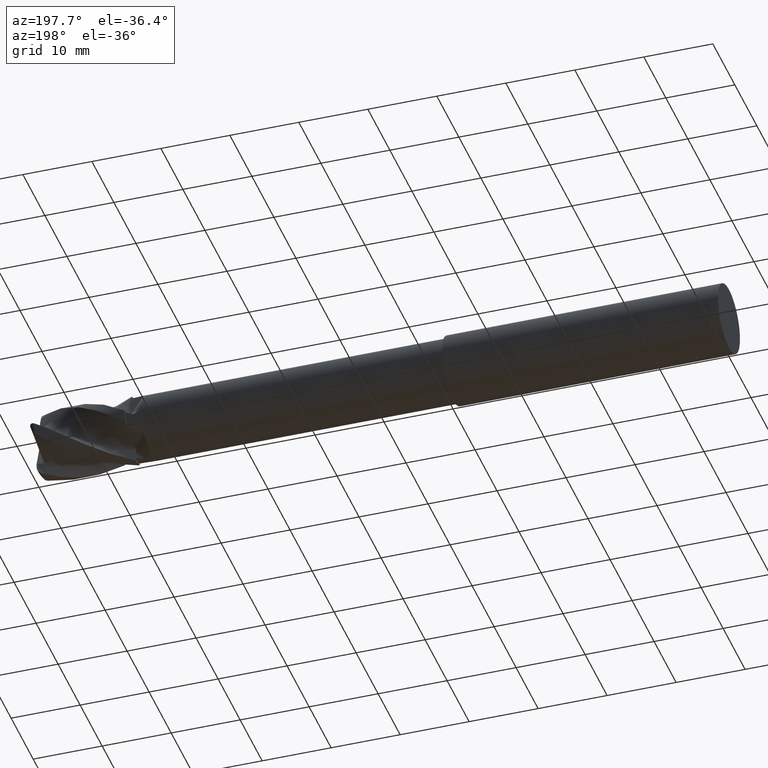
[diagram: clean part render]
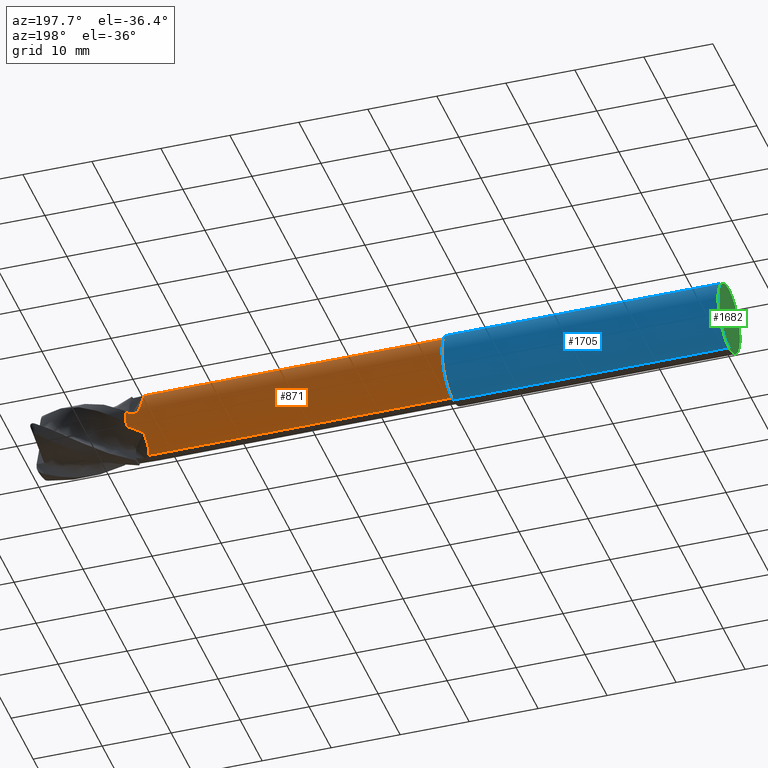
[diagram: same view with three faces highlighted in distinct colors, each labeled with its STEP entity id]
A machine part, auxiliary view with three faces highlighted in distinct colors.
Their STEP definitions:

[orange] entity #871 — the highlighted cylindrical surface (edge-blend (fillet) strip) has radius 4.6 mm, axis along (-1, -0, -0).
#6 = EDGE_CURVE ( 'NONE', #1723, #1753, #130, .T. ) ;
#11 = EDGE_CURVE ( 'NONE', #1735, #1746, #122, .T. ) ;
#16 = AXIS2_PLACEMENT_3D ( 'NONE', #1970, #1971, #1972 ) ;
#23 = AXIS2_PLACEMENT_3D ( 'NONE', #374, #1806, #1808 ) ;
#49 = AXIS2_PLACEMENT_3D ( 'NONE', #1817, #1849, #1851 ) ;
#67 = EDGE_CURVE ( 'NONE', #1744, #1745, #425, .T. ) ;
#68 = AXIS2_PLACEMENT_3D ( 'NONE', #2635, #2633, #2631 ) ;
#71 = EDGE_CURVE ( 'NONE', #1724, #1723, #739, .T. ) ;
#119 = EDGE_CURVE ( 'NONE', #1744, #1746, #729, .T. ) ;
#122 = B_SPLINE_CURVE_WITH_KNOTS ( 'NONE', 3,
 ( #2689, #2680, #2694, #1814 ),
 .UNSPECIFIED., .F., .F.,
 ( 4, 4 ),
 ( 0.0000000000000000000, 0.002579758341866395600 ),
 .UNSPECIFIED. ) ;
#130 = B_SPLINE_CURVE_WITH_KNOTS ( 'NONE', 3,
 ( #2632, #2688, #2691, #2690 ),
 .UNSPECIFIED., .F., .F.,
 ( 4, 4 ),
 ( 0.0000000000000000000, 6.838080185869568700E-005 ),
 .UNSPECIFIED. ) ;
#141 = EDGE_CURVE ( 'NONE', #1756, #1755, #722, .T. ) ;
#181 = EDGE_CURVE ( 'NONE', #1757, #1755, #715, .T. ) ;
#188 = EDGE_CURVE ( 'NONE', #1764, #2592, #2710, .T. ) ;
#215 = EDGE_CURVE ( 'NONE', #1752, #1724, #2728, .T. ) ;
#218 = EDGE_CURVE ( 'NONE', #1752, #1756, #4793, .T. ) ;
#227 = EDGE_CURVE ( 'NONE', #1764, #1735, #5555, .T. ) ;
#231 = EDGE_CURVE ( 'NONE', #2592, #1757, #2733, .T. ) ;
#244 = EDGE_CURVE ( 'NONE', #1722, #1745, #846, .T. ) ;
#274 = CARTESIAN_POINT ( 'NONE',  ( 43.68486841192311200, 3.593307055375448500, 2.890005949104696500 ) ) ;
#316 = CARTESIAN_POINT ( 'NONE',  ( 46.00000000000002800, -3.057177230266307700E-014, 4.603806250000012300 ) ) ;
#336 = CARTESIAN_POINT ( 'NONE',  ( 45.47496809532894000, 4.588978823489462400, -0.3182347522905614200 ) ) ;
#342 = CARTESIAN_POINT ( 'NONE',  ( 45.56248452080900100, 4.592651830724725500, -0.2652695990480638500 ) ) ;
#343 = CARTESIAN_POINT ( 'NONE',  ( 45.65000113758220100, 4.595408140834668300, -0.2122332164550556300 ) ) ;
#346 = CARTESIAN_POINT ( 'NONE',  ( 45.91249813699650400, 4.600000000000131100, -0.05305276993566909000 ) ) ;
#347 = CARTESIAN_POINT ( 'NONE',  ( 45.73751687418248200, 4.597245308640931500, -0.1591715181151740800 ) ) ;
#348 = CARTESIAN_POINT ( 'NONE',  ( 45.82500441381378700, 4.599081884524350600, -0.1061269158898889000 ) ) ;
#369 = CARTESIAN_POINT ( 'NONE',  ( 46.00000000000002800, 4.603806250000012300, 7.893058096946935400E-014 ) ) ;
#374 = CARTESIAN_POINT ( 'NONE',  ( 46.00000000000000000, 0.0000000000000000000, 0.0000000000000000000 ) ) ;
#376 = CARTESIAN_POINT ( 'NONE',  ( 45.47496809532895400, 0.3182347522906102700, 4.588978823489458000 ) ) ;
#377 = CARTESIAN_POINT ( 'NONE',  ( 45.56248452080907900, 0.2652695990480717900, 4.592651830724691700 ) ) ;
#379 = CARTESIAN_POINT ( 'NONE',  ( 43.78568294005629000, 3.149999999999916900, 3.359977695790985900 ) ) ;
#385 = CARTESIAN_POINT ( 'NONE',  ( 45.65000113758224400, 0.2122332164550783900, 4.595408140834667400 ) ) ;
#387 = CARTESIAN_POINT ( 'NONE',  ( 45.73751687418249600, 0.1591715181152130500, 4.597245308640930600 ) ) ;
#388 = CARTESIAN_POINT ( 'NONE',  ( 45.82500441381378000, 0.1061269158899422900, 4.599081884524349700 ) ) ;
#390 = CARTESIAN_POINT ( 'NONE',  ( 45.91249813699652500, 0.05305276993584148700, 4.599999999999989900 ) ) ;
#392 = CARTESIAN_POINT ( 'NONE',  ( 43.72895469692024100, 3.384153176010997300, 3.132211171381911600 ) ) ;
#421 = EDGE_LOOP ( 'NONE', ( #553, #518, #495, #517, #618, #652, #649, #666, #627, #558, #527, #570, #562, #551 ) ) ;
#424 = VECTOR ( 'NONE', #4720, 1000.000000000000000 ) ;
#425 = LINE ( 'NONE', #4714, #424 ) ;
#495 = ORIENTED_EDGE ( 'NONE', *, *, #244, .F. ) ;
#517 = ORIENTED_EDGE ( 'NONE', *, *, #5683, .F. ) ;
#518 = ORIENTED_EDGE ( 'NONE', *, *, #67, .T. ) ;
#527 = ORIENTED_EDGE ( 'NONE', *, *, #231, .F. ) ;
#551 = ORIENTED_EDGE ( 'NONE', *, *, #11, .T. ) ;
#553 = ORIENTED_EDGE ( 'NONE', *, *, #119, .F. ) ;
#558 = ORIENTED_EDGE ( 'NONE', *, *, #181, .F. ) ;
#562 = ORIENTED_EDGE ( 'NONE', *, *, #227, .T. ) ;
#570 = ORIENTED_EDGE ( 'NONE', *, *, #188, .F. ) ;
#618 = ORIENTED_EDGE ( 'NONE', *, *, #6, .F. ) ;
#627 = ORIENTED_EDGE ( 'NONE', *, *, #141, .T. ) ;
#649 = ORIENTED_EDGE ( 'NONE', *, *, #215, .F. ) ;
#652 = ORIENTED_EDGE ( 'NONE', *, *, #71, .F. ) ;
#666 = ORIENTED_EDGE ( 'NONE', *, *, #218, .T. ) ;
#715 = B_SPLINE_CURVE_WITH_KNOTS ( 'NONE', 3,
 ( #2850, #2845, #2844, #2843, #2842, #2841, #2874, #2945, #3885, #274, #392, #379 ),
 .UNSPECIFIED., .F., .F.,
 ( 4, 2, 2, 2, 2, 4 ),
 ( 0.0000000000000000000, 0.0009687754797152372100, 0.001453163219572852700, 0.001937550959430468400, 0.002906326439145700600, 0.003875101918860933200 ),
 .UNSPECIFIED. ) ;
#722 = B_SPLINE_CURVE_WITH_KNOTS ( 'NONE', 3,
 ( #2935, #2932, #2931, #2930 ),
 .UNSPECIFIED., .F., .F.,
 ( 4, 4 ),
 ( 0.0000000000000000000, 0.002579758341759249100 ),
 .UNSPECIFIED. ) ;
#729 = B_SPLINE_CURVE_WITH_KNOTS ( 'NONE', 3,
 ( #3022, #2868, #2860, #2857, #2856, #2853, #3069, #3061, #3059, #3058, #3056, #3054 ),
 .UNSPECIFIED., .F., .F.,
 ( 4, 2, 2, 2, 2, 4 ),
 ( 6.838080185869621500E-005, 0.001020061081109255400, 0.001495901220734537400, 0.001971741360359819200, 0.002923421639610383600, 0.003875101918860948400 ),
 .UNSPECIFIED. ) ;
#739 = B_SPLINE_CURVE_WITH_KNOTS ( 'NONE', 3,
 ( #4764, #4756, #4750, #4734, #4770, #4767, #4744, #4743, #4735, #4762 ),
 .UNSPECIFIED., .F., .F.,
 ( 4, 2, 2, 2, 4 ),
 ( 0.0000000000000000000, 0.0003904199212847112600, 0.0007808398425694225100, 0.001171259763854133800, 0.001561679685138845000 ),
 .UNSPECIFIED. ) ;
#846 = CIRCLE ( 'NONE', #16, 4.600000000000013000 ) ;
#871 = ADVANCED_FACE ( 'NONE', ( #2815 ), #2831, .T. ) ;
#1722 = VERTEX_POINT ( 'NONE', #5164 ) ;
#1723 = VERTEX_POINT ( 'NONE', #5234 ) ;
#1724 = VERTEX_POINT ( 'NONE', #5235 ) ;
#1735 = VERTEX_POINT ( 'NONE', #5246 ) ;
#1744 = VERTEX_POINT ( 'NONE', #5253 ) ;
#1745 = VERTEX_POINT ( 'NONE', #4883 ) ;
#1746 = VERTEX_POINT ( 'NONE', #5254 ) ;
#1752 = VERTEX_POINT ( 'NONE', #5260 ) ;
#1753 = VERTEX_POINT ( 'NONE', #5261 ) ;
#1755 = VERTEX_POINT ( 'NONE', #5263 ) ;
#1756 = VERTEX_POINT ( 'NONE', #5264 ) ;
#1757 = VERTEX_POINT ( 'NONE', #5265 ) ;
#1764 = VERTEX_POINT ( 'NONE', #5272 ) ;
#1806 = DIRECTION ( 'NONE',  ( -1.000000000000000000, -0.0000000000000000000, -0.0000000000000000000 ) ) ;
#1808 = DIRECTION ( 'NONE',  ( 0.0000000000000000000, 0.0000000000000000000, 1.000000000000000000 ) ) ;
#1814 = CARTESIAN_POINT ( 'NONE',  ( 43.78568294005627600, 3.359977695790956600, -3.149999999999951500 ) ) ;
#1817 = CARTESIAN_POINT ( 'NONE',  ( 46.00000000000000000, 0.0000000000000000000, 0.0000000000000000000 ) ) ;
#1849 = DIRECTION ( 'NONE',  ( -1.000000000000000000, -0.0000000000000000000, -0.0000000000000000000 ) ) ;
#1851 = DIRECTION ( 'NONE',  ( 0.0000000000000000000, 0.0000000000000000000, 1.000000000000000000 ) ) ;
#1853 = CARTESIAN_POINT ( 'NONE',  ( 45.47496809532894000, 4.588978823489462400, -0.3182347522905614200 ) ) ;
#1867 = CARTESIAN_POINT ( 'NONE',  ( 45.36208974345393600, 4.584241403570441500, -0.3865488491322051600 ) ) ;
#1868 = CARTESIAN_POINT ( 'NONE',  ( 45.24179263251835400, 4.579391793827799300, -0.4360046734373243000 ) ) ;
#1870 = CARTESIAN_POINT ( 'NONE',  ( 44.98602054695380300, 4.573211066602193700, -0.4966586523395944400 ) ) ;
#1872 = CARTESIAN_POINT ( 'NONE',  ( 44.85523423182750900, 4.572048517663422000, -0.5065647287860735000 ) ) ;
#1874 = CARTESIAN_POINT ( 'NONE',  ( 44.59525196074251600, 4.575326415361317300, -0.4760500658705544800 ) ) ;
#1876 = CARTESIAN_POINT ( 'NONE',  ( 44.46577530485286900, 4.580064301766896900, -0.4339461765837098800 ) ) ;
#1877 = CARTESIAN_POINT ( 'NONE',  ( 44.24726286046340100, 4.591501150517747700, -0.2888173770487416100 ) ) ;
#1878 = CARTESIAN_POINT ( 'NONE',  ( 44.15954311615698900, 4.597875028281165100, -0.1854231360638994300 ) ) ;
#1879 = CARTESIAN_POINT ( 'NONE',  ( 44.10627371195472100, 4.599559900650954900, -0.06362955542766125800 ) ) ;
#1970 = CARTESIAN_POINT ( 'NONE',  ( 0.0000000000000000000, 0.0000000000000000000, 0.0000000000000000000 ) ) ;
#1971 = DIRECTION ( 'NONE',  ( -1.000000000000000000, -0.0000000000000000000, -0.0000000000000000000 ) ) ;
#1972 = DIRECTION ( 'NONE',  ( 0.0000000000000000000, 0.0000000000000000000, 1.000000000000000000 ) ) ;
#2592 = VERTEX_POINT ( 'NONE', #5312 ) ;
#2632 = CARTESIAN_POINT ( 'NONE',  ( 44.10627371195472100, 0.06362955542771243900, 4.599559900650954900 ) ) ;
#2631 = DIRECTION ( 'NONE',  ( 0.0000000000000000000, 0.0000000000000000000, 1.000000000000000000 ) ) ;
#2633 = DIRECTION ( 'NONE',  ( -1.000000000000000000, -0.0000000000000000000, -0.0000000000000000000 ) ) ;
#2635 = CARTESIAN_POINT ( 'NONE',  ( -39.76065438357068200, 0.0000000000000000000, 0.0000000000000000000 ) ) ;
#2680 = CARTESIAN_POINT ( 'NONE',  ( 45.26246651607478100, 3.914400639360502900, -2.457064298590758300 ) ) ;
#2688 = CARTESIAN_POINT ( 'NONE',  ( 44.09700990263597500, 0.04244903675422977100, 4.599852908463883100 ) ) ;
#2689 = CARTESIAN_POINT ( 'NONE',  ( 45.99999999999998600, 4.114268091360786500, -2.057376502347263900 ) ) ;
#2690 = CARTESIAN_POINT ( 'NONE',  ( 44.07893505724294400, 9.016631842204136900E-013, 4.600000000000015600 ) ) ;
#2691 = CARTESIAN_POINT ( 'NONE',  ( 44.08789765494421400, 0.02123894291805525700, 4.600000000000011200 ) ) ;
#2694 = CARTESIAN_POINT ( 'NONE',  ( 44.53502912971742200, 3.650546472060925800, -2.832539423016041400 ) ) ;
#2710 = B_SPLINE_CURVE_WITH_KNOTS ( 'NONE', 3,
 ( #369, #346, #348, #347, #343, #342, #336 ),
 .UNSPECIFIED., .F., .F.,
 ( 4, 3, 4 ),
 ( 0.0000000000000000000, 0.0003069862404776165800, 0.0006140714344149123500 ),
 .UNSPECIFIED. ) ;
#2728 = B_SPLINE_CURVE_WITH_KNOTS ( 'NONE', 3,
 ( #316, #390, #388, #387, #385, #377, #376 ),
 .UNSPECIFIED., .F., .F.,
 ( 4, 3, 4 ),
 ( 0.0000000000000000000, 0.0003069862404775248100, 0.0006140714344147174100 ),
 .UNSPECIFIED. ) ;
#2733 = B_SPLINE_CURVE_WITH_KNOTS ( 'NONE', 3,
 ( #1853, #1867, #1868, #1870, #1872, #1874, #1876, #1877, #1878, #1879 ),
 .UNSPECIFIED., .F., .F.,
 ( 4, 2, 2, 2, 4 ),
 ( 0.0000000000000000000, 0.0003904199212846722800, 0.0007808398425693445600, 0.001171259763854016900, 0.001561679685138689100 ),
 .UNSPECIFIED. ) ;
#2775 = VECTOR ( 'NONE', #5383, 1000.000000000000000 ) ;
#2780 = LINE ( 'NONE', #5382, #2775 ) ;
#2815 = FACE_OUTER_BOUND ( 'NONE', #421, .T. ) ;
#2831 = CYLINDRICAL_SURFACE ( 'NONE', #68, 4.600000000000015600 ) ;
#2841 = CARTESIAN_POINT ( 'NONE',  ( 43.68323659156435900, 4.360791999144679700, 1.472869865255174200 ) ) ;
#2842 = CARTESIAN_POINT ( 'NONE',  ( 43.73086922116358700, 4.452988221274941900, 1.164795433098740900 ) ) ;
#2843 = CARTESIAN_POINT ( 'NONE',  ( 43.76174014983615000, 4.491069679502143900, 1.007567396614729800 ) ) ;
#2844 = CARTESIAN_POINT ( 'NONE',  ( 43.87391116522584900, 4.578800391629761700, 0.5423860922521587200 ) ) ;
#2845 = CARTESIAN_POINT ( 'NONE',  ( 43.97502998458069400, 4.603711048002460300, 0.2364424908306176900 ) ) ;
#2850 = CARTESIAN_POINT ( 'NONE',  ( 44.10627371195472100, 4.599559900650954900, -0.06362955542766125800 ) ) ;
#2853 = CARTESIAN_POINT ( 'NONE',  ( 43.67869275047195300, 1.510404310162502200, -4.347828897092781200 ) ) ;
#2856 = CARTESIAN_POINT ( 'NONE',  ( 43.72312372491380500, 1.208682668761086500, -4.441173662984713400 ) ) ;
#2857 = CARTESIAN_POINT ( 'NONE',  ( 43.75213022278599300, 1.054337306683800200, -4.480242426575426200 ) ) ;
#2860 = CARTESIAN_POINT ( 'NONE',  ( 43.85817310060237200, 0.5967088308552115400, -4.571732275602527400 ) ) ;
#2868 = CARTESIAN_POINT ( 'NONE',  ( 43.95419935290314600, 0.2955900278572656200, -4.600000000000069800 ) ) ;
#2874 = CARTESIAN_POINT ( 'NONE',  ( 43.66623769917777100, 4.306705324596845400, 1.624271104358721900 ) ) ;
#2930 = CARTESIAN_POINT ( 'NONE',  ( 43.78568294005629000, 3.149999999999916900, 3.359977695790985900 ) ) ;
#2931 = CARTESIAN_POINT ( 'NONE',  ( 44.53502912975928800, 2.832539423120636000, 3.650546471962635900 ) ) ;
#2932 = CARTESIAN_POINT ( 'NONE',  ( 45.26246651614255300, 2.457064298806654000, 3.914400639229770100 ) ) ;
#2935 = CARTESIAN_POINT ( 'NONE',  ( 46.00000000000000000, 2.057376502534775200, 4.114268091267016200 ) ) ;
#2945 = CARTESIAN_POINT ( 'NONE',  ( 43.63365829765671600, 4.120377571512421800, 2.070352182996650900 ) ) ;
#3022 = CARTESIAN_POINT ( 'NONE',  ( 44.07893505724294400, -9.008364800638935000E-013, -4.600000000000017400 ) ) ;
#3054 = CARTESIAN_POINT ( 'NONE',  ( 43.78568294005627600, 3.359977695790956600, -3.149999999999951500 ) ) ;
#3056 = CARTESIAN_POINT ( 'NONE',  ( 43.73004574127912000, 3.136093808607403100, -3.380021263543009400 ) ) ;
#3058 = CARTESIAN_POINT ( 'NONE',  ( 43.68644192710299700, 2.898537879205585400, -3.585908237642405600 ) ) ;
#3059 = CARTESIAN_POINT ( 'NONE',  ( 43.63787710533019000, 2.379860355642486900, -3.949243524223657400 ) ) ;
#3061 = CARTESIAN_POINT ( 'NONE',  ( 43.63353993338933600, 2.095796726736601100, -4.107064909439386300 ) ) ;
#3069 = CARTESIAN_POINT ( 'NONE',  ( 43.66298549693981100, 1.658717742134005800, -4.293453385617110200 ) ) ;
#3885 = CARTESIAN_POINT ( 'NONE',  ( 43.63687158576352900, 3.961377257550771100, 2.360398314571301000 ) ) ;
#4714 = CARTESIAN_POINT ( 'NONE',  ( -39.76065438357068200, 5.633375276077843800E-016, -4.600000000000015600 ) ) ;
#4720 = DIRECTION ( 'NONE',  ( -1.000000000000000000, -0.0000000000000000000, -0.0000000000000000000 ) ) ;
#4734 = CARTESIAN_POINT ( 'NONE',  ( 44.98602054695377500, 0.4966586523397157300, 4.573211066602182100 ) ) ;
#4735 = CARTESIAN_POINT ( 'NONE',  ( 44.15954311615686100, 0.1854231360640581400, 4.597875028281154500 ) ) ;
#4743 = CARTESIAN_POINT ( 'NONE',  ( 44.24726286046329400, 0.2888173770488909900, 4.591501150517737900 ) ) ;
#4744 = CARTESIAN_POINT ( 'NONE',  ( 44.46577530485281200, 0.4339461765838668100, 4.580064301766881800 ) ) ;
#4750 = CARTESIAN_POINT ( 'NONE',  ( 45.24179263251835400, 0.4360046734374000100, 4.579391793827792200 ) ) ;
#4756 = CARTESIAN_POINT ( 'NONE',  ( 45.36208974345394300, 0.3865488491322629000, 4.584241403570438000 ) ) ;
#4762 = CARTESIAN_POINT ( 'NONE',  ( 44.10627371195472100, 0.06362955542771243900, 4.599559900650954900 ) ) ;
#4764 = CARTESIAN_POINT ( 'NONE',  ( 45.47496809532895400, 0.3182347522906102700, 4.588978823489458000 ) ) ;
#4767 = CARTESIAN_POINT ( 'NONE',  ( 44.59525196074250900, 0.4760500658707231800, 4.575326415361304900 ) ) ;
#4770 = CARTESIAN_POINT ( 'NONE',  ( 44.85523423182750900, 0.5065647287862157200, 4.572048517663408700 ) ) ;
#4793 = CIRCLE ( 'NONE', #23, 4.600000000000018300 ) ;
#4883 = CARTESIAN_POINT ( 'NONE',  ( 0.0000000000000000000, 5.633375276077842800E-016, -4.600000000000013000 ) ) ;
#5164 = CARTESIAN_POINT ( 'NONE',  ( 0.0000000000000000000, 0.0000000000000000000, 4.600000000000013000 ) ) ;
#5234 = CARTESIAN_POINT ( 'NONE',  ( 44.10627371195472100, 0.06362955542771243900, 4.599559900650954900 ) ) ;
#5235 = CARTESIAN_POINT ( 'NONE',  ( 45.47496809532895400, 0.3182347522906102700, 4.588978823489458000 ) ) ;
#5246 = CARTESIAN_POINT ( 'NONE',  ( 45.99999999999998600, 4.114268091360786500, -2.057376502347263900 ) ) ;
#5253 = CARTESIAN_POINT ( 'NONE',  ( 44.07893505724294400, -9.008364800638935000E-013, -4.600000000000017400 ) ) ;
#5254 = CARTESIAN_POINT ( 'NONE',  ( 43.78568294005627600, 3.359977695790956600, -3.149999999999951500 ) ) ;
#5260 = CARTESIAN_POINT ( 'NONE',  ( 46.00000000000002800, -3.057177230266307700E-014, 4.603806250000012300 ) ) ;
#5261 = CARTESIAN_POINT ( 'NONE',  ( 44.07893505724294400, 9.016631842204136900E-013, 4.600000000000015600 ) ) ;
#5263 = CARTESIAN_POINT ( 'NONE',  ( 43.78568294005629000, 3.149999999999916900, 3.359977695790985900 ) ) ;
#5264 = CARTESIAN_POINT ( 'NONE',  ( 46.00000000000000000, 2.057376502534775200, 4.114268091267016200 ) ) ;
#5265 = CARTESIAN_POINT ( 'NONE',  ( 44.10627371195472100, 4.599559900650954900, -0.06362955542766125800 ) ) ;
#5272 = CARTESIAN_POINT ( 'NONE',  ( 46.00000000000002800, 4.603806250000012300, 7.893058096946935400E-014 ) ) ;
#5312 = CARTESIAN_POINT ( 'NONE',  ( 45.47496809532894000, 4.588978823489462400, -0.3182347522905614200 ) ) ;
#5382 = CARTESIAN_POINT ( 'NONE',  ( -39.76065438357068200, 0.0000000000000000000, 4.600000000000015600 ) ) ;
#5383 = DIRECTION ( 'NONE',  ( -1.000000000000000000, -0.0000000000000000000, -0.0000000000000000000 ) ) ;
#5555 = CIRCLE ( 'NONE', #49, 4.600000000000018300 ) ;
#5683 = EDGE_CURVE ( 'NONE', #1753, #1722, #2780, .T. ) ;

[blue] entity #1705 — the highlighted cylindrical surface (edge-blend (fillet) strip) has radius 5 mm, axis along (-1, -0, -0).
#8 = AXIS2_PLACEMENT_3D ( 'NONE', #3799, #3798, #3451 ) ;
#21 = EDGE_CURVE ( 'NONE', #2594, #2603, #444, .T. ) ;
#30 = AXIS2_PLACEMENT_3D ( 'NONE', #1940, #1948, #1949 ) ;
#170 = EDGE_CURVE ( 'NONE', #2594, #1754, #4822, .T. ) ;
#216 = AXIS2_PLACEMENT_3D ( 'NONE', #1838, #1873, #1871 ) ;
#238 = EDGE_CURVE ( 'NONE', #1754, #1751, #464, .T. ) ;
#432 = EDGE_LOOP ( 'NONE', ( #610, #623, #608, #644 ) ) ;
#444 = CIRCLE ( 'NONE', #216, 5.000000000000009800 ) ;
#464 = CIRCLE ( 'NONE', #30, 5.000000000000004400 ) ;
#608 = ORIENTED_EDGE ( 'NONE', *, *, #238, .F. ) ;
#610 = ORIENTED_EDGE ( 'NONE', *, *, #21, .T. ) ;
#623 = ORIENTED_EDGE ( 'NONE', *, *, #5694, .T. ) ;
#644 = ORIENTED_EDGE ( 'NONE', *, *, #170, .F. ) ;
#662 = LINE ( 'NONE', #5460, #1714 ) ;
#1705 = ADVANCED_FACE ( 'NONE', ( #2836 ), #2781, .T. ) ;
#1714 = VECTOR ( 'NONE', #5461, 1000.000000000000000 ) ;
#1751 = VERTEX_POINT ( 'NONE', #5259 ) ;
#1754 = VERTEX_POINT ( 'NONE', #5262 ) ;
#1838 = CARTESIAN_POINT ( 'NONE',  ( 0.0000000000000000000, 0.0000000000000000000, 0.0000000000000000000 ) ) ;
#1871 = DIRECTION ( 'NONE',  ( 0.0000000000000000000, 0.0000000000000000000, 1.000000000000000000 ) ) ;
#1873 = DIRECTION ( 'NONE',  ( -1.000000000000000000, -0.0000000000000000000, -0.0000000000000000000 ) ) ;
#1940 = CARTESIAN_POINT ( 'NONE',  ( -40.00000000000000000, 0.0000000000000000000, 0.0000000000000000000 ) ) ;
#1948 = DIRECTION ( 'NONE',  ( -1.000000000000000000, -0.0000000000000000000, -0.0000000000000000000 ) ) ;
#1949 = DIRECTION ( 'NONE',  ( 0.0000000000000000000, 0.0000000000000000000, 1.000000000000000000 ) ) ;
#2594 = VERTEX_POINT ( 'NONE', #5313 ) ;
#2603 = VERTEX_POINT ( 'NONE', #5318 ) ;
#2781 = CYLINDRICAL_SURFACE ( 'NONE', #8, 5.000000000000007100 ) ;
#2836 = FACE_OUTER_BOUND ( 'NONE', #432, .T. ) ;
#2863 = DIRECTION ( 'NONE',  ( -1.000000000000000000, -0.0000000000000000000, -0.0000000000000000000 ) ) ;
#2864 = CARTESIAN_POINT ( 'NONE',  ( -39.76065438357068200, 0.0000000000000000000, 5.000000000000007100 ) ) ;
#3451 = DIRECTION ( 'NONE',  ( 0.0000000000000000000, 0.0000000000000000000, 1.000000000000000000 ) ) ;
#3798 = DIRECTION ( 'NONE',  ( -1.000000000000000000, -0.0000000000000000000, -0.0000000000000000000 ) ) ;
#3799 = CARTESIAN_POINT ( 'NONE',  ( -39.76065438357068200, 0.0000000000000000000, 0.0000000000000000000 ) ) ;
#4804 = VECTOR ( 'NONE', #2863, 1000.000000000000000 ) ;
#4822 = LINE ( 'NONE', #2864, #4804 ) ;
#5259 = CARTESIAN_POINT ( 'NONE',  ( -40.00000000000000000, 6.123233995736773200E-016, -5.000000000000004400 ) ) ;
#5262 = CARTESIAN_POINT ( 'NONE',  ( -40.00000000000000000, 0.0000000000000000000, 5.000000000000004400 ) ) ;
#5313 = CARTESIAN_POINT ( 'NONE',  ( 0.0000000000000000000, 0.0000000000000000000, 5.000000000000009800 ) ) ;
#5318 = CARTESIAN_POINT ( 'NONE',  ( 0.0000000000000000000, 6.123233995736777100E-016, -5.000000000000009800 ) ) ;
#5460 = CARTESIAN_POINT ( 'NONE',  ( -39.76065438357068200, 6.123233995736774200E-016, -5.000000000000007100 ) ) ;
#5461 = DIRECTION ( 'NONE',  ( -1.000000000000000000, -0.0000000000000000000, -0.0000000000000000000 ) ) ;
#5694 = EDGE_CURVE ( 'NONE', #2603, #1751, #662, .T. ) ;

[green] entity #1682 — the highlighted planar face has unit normal (1, 0, 0).
#30 = AXIS2_PLACEMENT_3D ( 'NONE', #1940, #1948, #1949 ) ;
#172 = AXIS2_PLACEMENT_3D ( 'NONE', #882, #883, #884 ) ;
#175 = AXIS2_PLACEMENT_3D ( 'NONE', #5480, #5481, #5482 ) ;
#238 = EDGE_CURVE ( 'NONE', #1754, #1751, #464, .T. ) ;
#406 = CIRCLE ( 'NONE', #175, 5.000000000000004400 ) ;
#464 = CIRCLE ( 'NONE', #30, 5.000000000000004400 ) ;
#787 = EDGE_LOOP ( 'NONE', ( #5643, #5644 ) ) ;
#875 = PLANE ( 'NONE',  #172 ) ;
#882 = CARTESIAN_POINT ( 'NONE',  ( -40.00000000000000000, 5.000000000000004400, 0.0000000000000000000 ) ) ;
#883 = DIRECTION ( 'NONE',  ( 1.000000000000000000, 0.0000000000000000000, 0.0000000000000000000 ) ) ;
#884 = DIRECTION ( 'NONE',  ( 0.0000000000000000000, 0.0000000000000000000, -1.000000000000000000 ) ) ;
#1682 = ADVANCED_FACE ( 'NONE', ( #2817 ), #875, .F. ) ;
#1751 = VERTEX_POINT ( 'NONE', #5259 ) ;
#1754 = VERTEX_POINT ( 'NONE', #5262 ) ;
#1940 = CARTESIAN_POINT ( 'NONE',  ( -40.00000000000000000, 0.0000000000000000000, 0.0000000000000000000 ) ) ;
#1948 = DIRECTION ( 'NONE',  ( -1.000000000000000000, -0.0000000000000000000, -0.0000000000000000000 ) ) ;
#1949 = DIRECTION ( 'NONE',  ( 0.0000000000000000000, 0.0000000000000000000, 1.000000000000000000 ) ) ;
#2817 = FACE_OUTER_BOUND ( 'NONE', #787, .T. ) ;
#5259 = CARTESIAN_POINT ( 'NONE',  ( -40.00000000000000000, 6.123233995736773200E-016, -5.000000000000004400 ) ) ;
#5262 = CARTESIAN_POINT ( 'NONE',  ( -40.00000000000000000, 0.0000000000000000000, 5.000000000000004400 ) ) ;
#5480 = CARTESIAN_POINT ( 'NONE',  ( -40.00000000000000000, 0.0000000000000000000, 0.0000000000000000000 ) ) ;
#5481 = DIRECTION ( 'NONE',  ( -1.000000000000000000, -0.0000000000000000000, -0.0000000000000000000 ) ) ;
#5482 = DIRECTION ( 'NONE',  ( 0.0000000000000000000, 0.0000000000000000000, 1.000000000000000000 ) ) ;
#5643 = ORIENTED_EDGE ( 'NONE', *, *, #238, .T. ) ;
#5644 = ORIENTED_EDGE ( 'NONE', *, *, #5696, .T. ) ;
#5696 = EDGE_CURVE ( 'NONE', #1751, #1754, #406, .T. ) ;